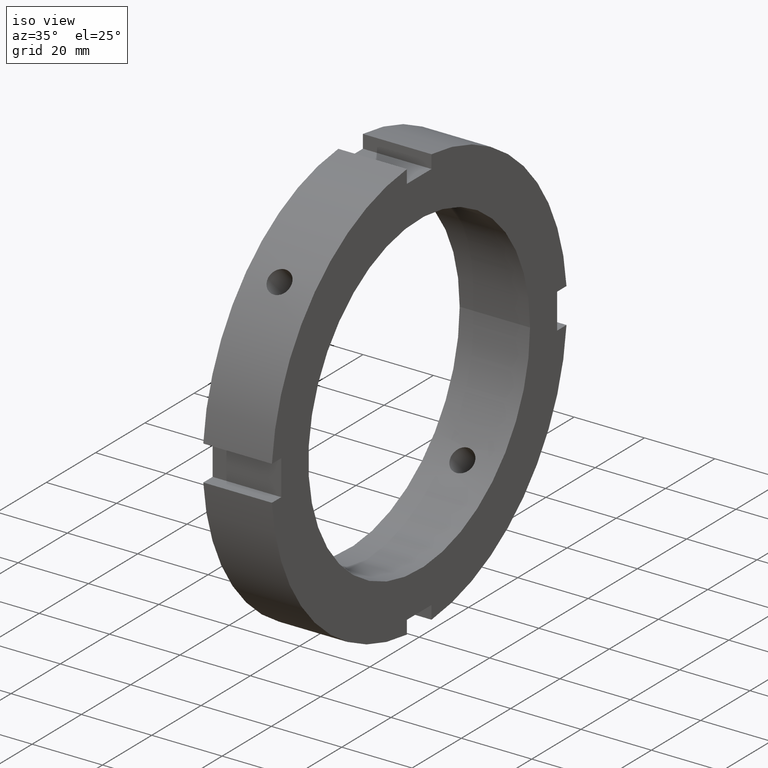
[diagram: clean part render]
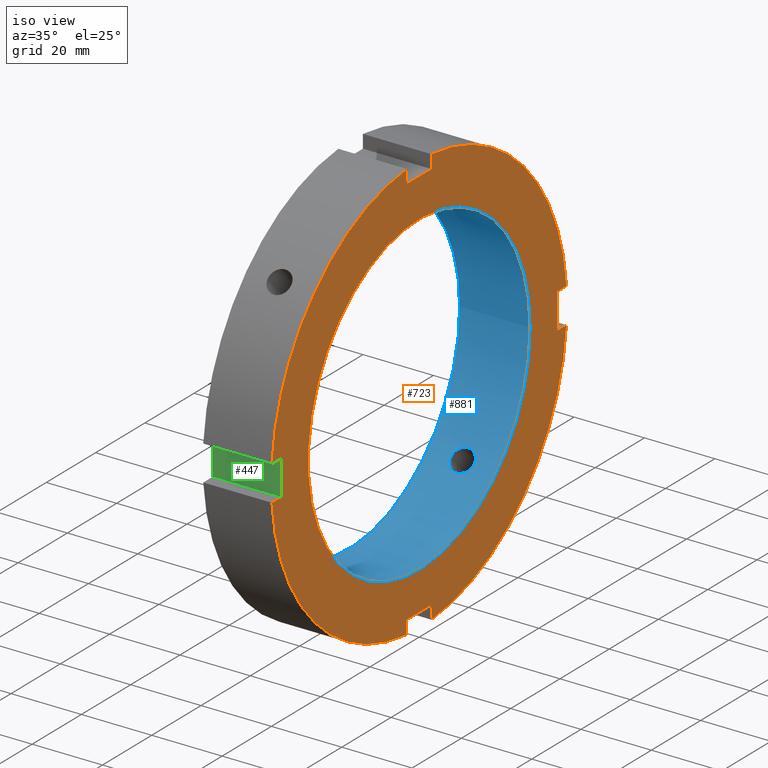
[diagram: same view with three faces highlighted in distinct colors, each labeled with its STEP entity id]
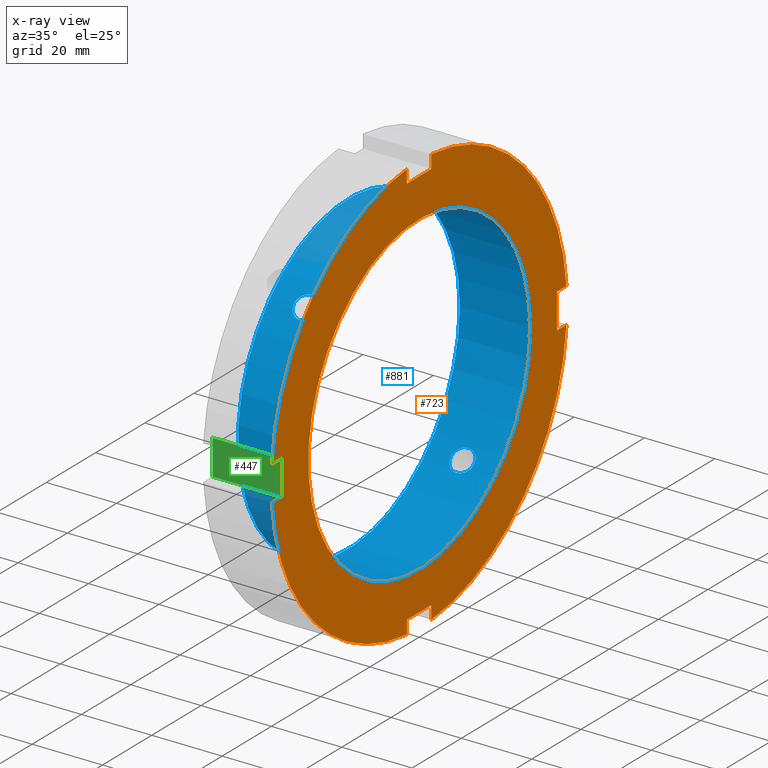
[diagram: x-ray of the same camera — body ghosted, the three highlighted faces saturated]
A machine part, iso view with three faces highlighted in distinct colors.
The next image is the same camera in x-ray (body ghosted, the three faces saturated) — at least one of them is partly hidden behind the body in this view.
Their STEP definitions:

[orange] entity #723 — the highlighted planar face has unit normal (1, 0, 0).
#259=CARTESIAN_POINT('',(19.999999999999989,-5.000000000000008,-56.0));
#260=VERTEX_POINT('',#259);
#267=CARTESIAN_POINT('',(19.999999999999989,-5.000000000000007,-59.791303715506992));
#268=VERTEX_POINT('',#267);
#269=CARTESIAN_POINT('',(19.999999999999989,-5.000000000000011,-59.791303715506992));
#270=DIRECTION('',(0.0,0.0,1.0));
#271=VECTOR('',#270,3.791303715506992);
#272=LINE('',#269,#271);
#273=EDGE_CURVE('',#268,#260,#272,.T.);
#299=CARTESIAN_POINT('',(19.999999999999989,4.999999999999985,-59.791303715506992));
#300=VERTEX_POINT('',#299);
#307=CARTESIAN_POINT('',(19.999999999999989,4.999999999999988,-56.0));
#308=VERTEX_POINT('',#307);
#309=CARTESIAN_POINT('',(19.999999999999989,4.999999999999983,-56.0));
#310=DIRECTION('',(0.0,0.0,-1.0));
#311=VECTOR('',#310,3.791303715506992);
#312=LINE('',#309,#311);
#313=EDGE_CURVE('',#308,#300,#312,.T.);
#336=CARTESIAN_POINT('',(19.999999999999989,-5.000000000000007,-55.999999999999993));
#337=DIRECTION('',(0.0,1.0,0.0));
#338=VECTOR('',#337,9.999999999999996);
#339=LINE('',#336,#338);
#340=EDGE_CURVE('',#260,#308,#339,.T.);
#361=CARTESIAN_POINT('',(19.999999999999989,-56.0,5.000000000000004));
#362=VERTEX_POINT('',#361);
#369=CARTESIAN_POINT('',(19.999999999999989,-59.791303715506992,5.000000000000004));
#370=VERTEX_POINT('',#369);
#371=CARTESIAN_POINT('',(19.999999999999989,-59.791303715506992,5.000000000000004));
#372=DIRECTION('',(0.0,1.0,0.0));
#373=VECTOR('',#372,3.791303715506992);
#374=LINE('',#371,#373);
#375=EDGE_CURVE('',#370,#362,#374,.T.);
#401=CARTESIAN_POINT('',(19.999999999999989,-59.791303715506992,-4.999999999999989));
#402=VERTEX_POINT('',#401);
#409=CARTESIAN_POINT('',(19.999999999999989,-56.0,-4.999999999999990));
#410=VERTEX_POINT('',#409);
#411=CARTESIAN_POINT('',(19.999999999999989,-56.0,-4.999999999999990));
#412=DIRECTION('',(0.0,-1.0,0.0));
#413=VECTOR('',#412,3.791303715506992);
#414=LINE('',#411,#413);
#415=EDGE_CURVE('',#410,#402,#414,.T.);
#438=CARTESIAN_POINT('',(19.999999999999989,-56.0,5.000000000000004));
#439=DIRECTION('',(0.0,0.0,-1.0));
#440=VECTOR('',#439,9.999999999999996);
#441=LINE('',#438,#440);
#442=EDGE_CURVE('',#362,#410,#441,.T.);
#463=CARTESIAN_POINT('',(19.999999999999989,5.000000000000001,56.0));
#464=VERTEX_POINT('',#463);
#471=CARTESIAN_POINT('',(19.999999999999989,5.0,59.791303715506992));
#472=VERTEX_POINT('',#471);
#473=CARTESIAN_POINT('',(19.999999999999989,4.999999999999997,59.791303715506992));
#474=DIRECTION('',(0.0,0.0,-1.0));
#475=VECTOR('',#474,3.791303715506992);
#476=LINE('',#473,#475);
#477=EDGE_CURVE('',#472,#464,#476,.T.);
#503=CARTESIAN_POINT('',(19.999999999999989,-4.999999999999992,59.791303715506992));
#504=VERTEX_POINT('',#503);
#511=CARTESIAN_POINT('',(19.999999999999989,-4.999999999999994,56.0));
#512=VERTEX_POINT('',#511);
#513=CARTESIAN_POINT('',(19.999999999999989,-4.999999999999990,56.0));
#514=DIRECTION('',(0.0,0.0,1.0));
#515=VECTOR('',#514,3.791303715506992);
#516=LINE('',#513,#515);
#517=EDGE_CURVE('',#512,#504,#516,.T.);
#540=CARTESIAN_POINT('',(19.999999999999989,5.0,56.0));
#541=DIRECTION('',(0.0,-1.0,0.0));
#542=VECTOR('',#541,9.999999999999996);
#543=LINE('',#540,#542);
#544=EDGE_CURVE('',#464,#512,#543,.T.);
#556=CARTESIAN_POINT('',(19.999999999999989,59.791303715506992,4.999999999999996));
#557=VERTEX_POINT('',#556);
#558=CARTESIAN_POINT('',(19.999999999999986,0.0,0.0));
#559=DIRECTION('',(1.0,0.0,0.0));
#560=DIRECTION('',(0.0,1.0,0.0));
#561=AXIS2_PLACEMENT_3D('',#558,#559,#560);
#562=CIRCLE('',#561,60.0);
#563=EDGE_CURVE('',#557,#472,#562,.T.);
#589=CARTESIAN_POINT('',(19.999999999999986,0.0,0.0));
#590=DIRECTION('',(1.0,0.0,0.0));
#591=DIRECTION('',(0.0,1.0,0.0));
#592=AXIS2_PLACEMENT_3D('',#589,#590,#591);
#593=CIRCLE('',#592,60.0);
#594=EDGE_CURVE('',#504,#370,#593,.T.);
#625=CARTESIAN_POINT('',(19.999999999999989,59.791303715506992,-4.999999999999996));
#626=VERTEX_POINT('',#625);
#633=CARTESIAN_POINT('',(19.999999999999986,0.0,0.0));
#634=DIRECTION('',(1.0,0.0,0.0));
#635=DIRECTION('',(0.0,1.0,0.0));
#636=AXIS2_PLACEMENT_3D('',#633,#634,#635);
#637=CIRCLE('',#636,60.0);
#638=EDGE_CURVE('',#300,#626,#637,.T.);
#652=CARTESIAN_POINT('',(19.999999999999986,0.0,0.0));
#653=DIRECTION('',(1.0,0.0,0.0));
#654=DIRECTION('',(0.0,1.0,0.0));
#655=AXIS2_PLACEMENT_3D('',#652,#653,#654);
#656=CIRCLE('',#655,60.0);
#657=EDGE_CURVE('',#402,#268,#656,.T.);
#670=CARTESIAN_POINT('',(19.999999999999989,52.500000000000000,0.0));
#671=DIRECTION('',(1.0,0.0,0.0));
#672=DIRECTION('',(0.0,0.0,-1.0));
#673=AXIS2_PLACEMENT_3D('',#670,#671,#672);
#674=PLANE('',#673);
#675=ORIENTED_EDGE('',*,*,#273,.T.);
#676=ORIENTED_EDGE('',*,*,#340,.T.);
#677=ORIENTED_EDGE('',*,*,#313,.T.);
#678=ORIENTED_EDGE('',*,*,#638,.T.);
#679=CARTESIAN_POINT('',(19.999999999999989,56.0,-4.999999999999997));
#680=VERTEX_POINT('',#679);
#681=CARTESIAN_POINT('',(19.999999999999989,59.791303715506992,-4.999999999999997));
#682=DIRECTION('',(0.0,-1.0,0.0));
#683=VECTOR('',#682,3.791303715506992);
#684=LINE('',#681,#683);
#685=EDGE_CURVE('',#626,#680,#684,.T.);
#686=ORIENTED_EDGE('',*,*,#685,.T.);
#687=CARTESIAN_POINT('',(19.999999999999989,56.0,4.999999999999997));
#688=VERTEX_POINT('',#687);
#689=CARTESIAN_POINT('',(19.999999999999989,56.0,-4.999999999999996));
#690=DIRECTION('',(0.0,0.0,1.0));
#691=VECTOR('',#690,9.999999999999993);
#692=LINE('',#689,#691);
#693=EDGE_CURVE('',#680,#688,#692,.T.);
#694=ORIENTED_EDGE('',*,*,#693,.T.);
#695=CARTESIAN_POINT('',(19.999999999999989,56.0,4.999999999999997));
#696=DIRECTION('',(0.0,1.0,0.0));
#697=VECTOR('',#696,3.791303715506992);
#698=LINE('',#695,#697);
#699=EDGE_CURVE('',#688,#557,#698,.T.);
#700=ORIENTED_EDGE('',*,*,#699,.T.);
#701=ORIENTED_EDGE('',*,*,#563,.T.);
#702=ORIENTED_EDGE('',*,*,#477,.T.);
#703=ORIENTED_EDGE('',*,*,#544,.T.);
#704=ORIENTED_EDGE('',*,*,#517,.T.);
#705=ORIENTED_EDGE('',*,*,#594,.T.);
#706=ORIENTED_EDGE('',*,*,#375,.T.);
#707=ORIENTED_EDGE('',*,*,#442,.T.);
#708=ORIENTED_EDGE('',*,*,#415,.T.);
#709=ORIENTED_EDGE('',*,*,#657,.T.);
#710=EDGE_LOOP('',(#675,#676,#677,#678,#686,#694,#700,#701,#702,#703,#704,#705,#706,#707,#708,#709));
#711=FACE_OUTER_BOUND('',#710,.T.);
#712=CARTESIAN_POINT('',(19.999999999999993,45.0,0.0));
#713=VERTEX_POINT('',#712);
#714=CARTESIAN_POINT('',(19.999999999999993,0.0,0.0));
#715=DIRECTION('',(1.0,0.0,0.0));
#716=DIRECTION('',(0.0,1.0,0.0));
#717=AXIS2_PLACEMENT_3D('',#714,#715,#716);
#718=CIRCLE('',#717,45.0);
#719=EDGE_CURVE('',#713,#713,#718,.T.);
#720=ORIENTED_EDGE('',*,*,#719,.F.);
#721=EDGE_LOOP('',(#720));
#722=FACE_BOUND('',#721,.T.);
#723=ADVANCED_FACE('',(#711,#722),#674,.T.);

[blue] entity #881 — the highlighted cylindrical surface (bore or boss wall) has radius 45 mm, axis along (1, 0, 0).
#114=CARTESIAN_POINT('',(9.999999999999991,-34.082973034355639,29.382834259808671));
#115=VERTEX_POINT('',#114);
#116=CARTESIAN_POINT('',(9.999999999999989,-34.082973034355632,29.382834259808686));
#117=CARTESIAN_POINT('',(10.417469380012360,-34.082973034355632,29.382834259808686));
#118=CARTESIAN_POINT('',(10.862661046645325,-34.028499303682750,29.446394307609175));
#119=CARTESIAN_POINT('',(11.681457677599141,-33.805037457042751,29.702665621787002));
#120=CARTESIAN_POINT('',(12.055075574637417,-33.635817881261559,29.895133630615518));
#121=CARTESIAN_POINT('',(12.645062902433306,-33.240450532774858,30.334134362726012));
#122=CARTESIAN_POINT('',(12.900814875656481,-32.987873059930429,30.609932573919274));
#123=CARTESIAN_POINT('',(13.240037625821708,-32.425269157335073,31.205282585973180));
#124=CARTESIAN_POINT('',(13.323499999999990,-32.115000285259555,31.524610021529718));
#125=CARTESIAN_POINT('',(13.323499999999990,-31.524610021529682,32.115000285259597));
#126=CARTESIAN_POINT('',(13.240037625821710,-31.205282585973141,32.425269157335109));
#127=CARTESIAN_POINT('',(12.900814875656488,-30.609932573919231,32.987873059930457));
#128=CARTESIAN_POINT('',(12.645062902433304,-30.334134362725980,33.240450532774879));
#129=CARTESIAN_POINT('',(12.055075574637421,-29.895133630615483,33.635817881261588));
#130=CARTESIAN_POINT('',(11.681457677599148,-29.702665621786963,33.805037457042793));
#131=CARTESIAN_POINT('',(10.862661046645332,-29.446394307609133,34.028499303682786));
#132=CARTESIAN_POINT('',(10.417469380012365,-29.382834259808650,34.082973034355661));
#133=CARTESIAN_POINT('',(9.582530619987617,-29.382834259808650,34.082973034355661));
#134=CARTESIAN_POINT('',(9.137338953354650,-29.446394307609136,34.028499303682786));
#135=CARTESIAN_POINT('',(8.318542322400836,-29.702665621786963,33.805037457042793));
#136=CARTESIAN_POINT('',(7.944924425362562,-29.895133630615483,33.635817881261588));
#137=CARTESIAN_POINT('',(7.354937097566678,-30.334134362725980,33.240450532774879));
#138=CARTESIAN_POINT('',(7.099185124343492,-30.609932573919231,32.987873059930457));
#139=CARTESIAN_POINT('',(6.759962374178270,-31.205282585973141,32.425269157335109));
#140=CARTESIAN_POINT('',(6.676499999999991,-31.524610021529682,32.115000285259597));
#141=CARTESIAN_POINT('',(6.676499999999991,-32.115000285259555,31.524610021529718));
#142=CARTESIAN_POINT('',(6.759962374178273,-32.425269157335073,31.205282585973180));
#143=CARTESIAN_POINT('',(7.099185124343500,-32.987873059930429,30.609932573919266));
#144=CARTESIAN_POINT('',(7.354937097566676,-33.240450532774858,30.334134362726012));
#145=CARTESIAN_POINT('',(7.944924425362563,-33.635817881261559,29.895133630615518));
#146=CARTESIAN_POINT('',(8.318542322400839,-33.805037457042751,29.702665621787002));
#147=CARTESIAN_POINT('',(9.137338953354654,-34.028499303682750,29.446394307609175));
#148=CARTESIAN_POINT('',(9.582530619987619,-34.082973034355632,29.382834259808686));
#149=CARTESIAN_POINT('',(9.999999999999993,-34.082973034355632,29.382834259808686));
#150=B_SPLINE_CURVE_WITH_KNOTS('',3,(#116,#117,#118,#119,#120,#121,#122,#123,#124,#125,#126,#127,#128,#129,#130,#131,#132,#133,#134,#135,#136,#137,#138,#139,#140,#141,#142,#143,#144,#145,#146,#147,#148,#149),.UNSPECIFIED.,.T.,.U.,(4,2,2,2,2,2,2,2,2,2,2,2,2,2,2,2,4),(0.0,0.125240814003712,0.250481628007423,0.375722315716397,0.500963003425371,0.626203691134343,0.751444378843316,0.876685192847028,1.001926006850740,1.127166820854452,1.252407634858164,1.377648322567137,1.502889010276109,1.628129697985083,1.753370385694057,1.878611199697768,2.003852013701480),.UNSPECIFIED.);
#151=EDGE_CURVE('',#115,#115,#150,.T.);
#202=CARTESIAN_POINT('',(9.999999999999991,29.382834259808664,-34.082973034355646));
#203=VERTEX_POINT('',#202);
#204=CARTESIAN_POINT('',(9.999999999999991,29.382834259808664,-34.082973034355646));
#205=CARTESIAN_POINT('',(9.582530619987617,29.382834259808664,-34.082973034355646));
#206=CARTESIAN_POINT('',(9.137338953354650,29.446394307609154,-34.028499303682771));
#207=CARTESIAN_POINT('',(8.318542322400834,29.702665621786977,-33.805037457042772));
#208=CARTESIAN_POINT('',(7.944924425362561,29.895133630615511,-33.635817881261573));
#209=CARTESIAN_POINT('',(7.354937097566678,30.334134362726004,-33.240450532774858));
#210=CARTESIAN_POINT('',(7.099185124343491,30.609932573919259,-32.987873059930443));
#211=CARTESIAN_POINT('',(6.759962374178270,31.205282585973162,-32.425269157335094));
#212=CARTESIAN_POINT('',(6.676499999999991,31.524610021529700,-32.115000285259576));
#213=CARTESIAN_POINT('',(6.676499999999991,32.115000285259576,-31.524610021529710));
#214=CARTESIAN_POINT('',(6.759962374178274,32.425269157335080,-31.205282585973173));
#215=CARTESIAN_POINT('',(7.099185124343497,32.987873059930436,-30.609932573919263));
#216=CARTESIAN_POINT('',(7.354937097566678,33.240450532774858,-30.334134362726004));
#217=CARTESIAN_POINT('',(7.944924425362561,33.635817881261559,-29.895133630615518));
#218=CARTESIAN_POINT('',(8.318542322400829,33.805037457042772,-29.702665621786991));
#219=CARTESIAN_POINT('',(9.137338953354643,34.028499303682764,-29.446394307609161));
#220=CARTESIAN_POINT('',(9.582530619987617,34.082973034355639,-29.382834259808671));
#221=CARTESIAN_POINT('',(10.417469380012365,34.082973034355639,-29.382834259808671));
#222=CARTESIAN_POINT('',(10.862661046645336,34.028499303682771,-29.446394307609157));
#223=CARTESIAN_POINT('',(11.681457677599154,33.805037457042772,-29.702665621786984));
#224=CARTESIAN_POINT('',(12.055075574637421,33.635817881261559,-29.895133630615518));
#225=CARTESIAN_POINT('',(12.645062902433303,33.240450532774858,-30.334134362726004));
#226=CARTESIAN_POINT('',(12.900814875656486,32.987873059930436,-30.609932573919263));
#227=CARTESIAN_POINT('',(13.240037625821708,32.425269157335087,-31.205282585973162));
#228=CARTESIAN_POINT('',(13.323499999999990,32.115000285259576,-31.524610021529710));
#229=CARTESIAN_POINT('',(13.323499999999990,31.524610021529700,-32.115000285259576));
#230=CARTESIAN_POINT('',(13.240037625821714,31.205282585973158,-32.425269157335094));
#231=CARTESIAN_POINT('',(12.900814875656494,30.609932573919259,-32.987873059930436));
#232=CARTESIAN_POINT('',(12.645062902433306,30.334134362726004,-33.240450532774858));
#233=CARTESIAN_POINT('',(12.055075574637424,29.895133630615511,-33.635817881261573));
#234=CARTESIAN_POINT('',(11.681457677599152,29.702665621786984,-33.805037457042772));
#235=CARTESIAN_POINT('',(10.862661046645332,29.446394307609150,-34.028499303682771));
#236=CARTESIAN_POINT('',(10.417469380012365,29.382834259808664,-34.082973034355646));
#237=CARTESIAN_POINT('',(9.999999999999991,29.382834259808664,-34.082973034355646));
#238=B_SPLINE_CURVE_WITH_KNOTS('',3,(#204,#205,#206,#207,#208,#209,#210,#211,#212,#213,#214,#215,#216,#217,#218,#219,#220,#221,#222,#223,#224,#225,#226,#227,#228,#229,#230,#231,#232,#233,#234,#235,#236,#237),.UNSPECIFIED.,.T.,.U.,(4,2,2,2,2,2,2,2,2,2,2,2,2,2,2,2,4),(0.0,0.125240814003712,0.250481628007424,0.375722315716397,0.500963003425369,0.626203691134341,0.751444378843314,0.876685192847026,1.001926006850738,1.127166820854450,1.252407634858162,1.377648322567135,1.502889010276107,1.628129697985079,1.753370385694052,1.878611199697764,2.003852013701476),.UNSPECIFIED.);
#239=EDGE_CURVE('',#203,#203,#238,.T.);
#712=CARTESIAN_POINT('',(19.999999999999993,45.0,0.0));
#713=VERTEX_POINT('',#712);
#714=CARTESIAN_POINT('',(19.999999999999993,0.0,0.0));
#715=DIRECTION('',(1.0,0.0,0.0));
#716=DIRECTION('',(0.0,1.0,0.0));
#717=AXIS2_PLACEMENT_3D('',#714,#715,#716);
#718=CIRCLE('',#717,45.0);
#719=EDGE_CURVE('',#713,#713,#718,.T.);
#805=CARTESIAN_POINT('',(-1.288320E-014,45.0,0.0));
#806=VERTEX_POINT('',#805);
#807=CARTESIAN_POINT('',(-1.288466E-014,0.0,0.0));
#808=DIRECTION('',(1.0,0.0,0.0));
#809=DIRECTION('',(0.0,1.0,0.0));
#810=AXIS2_PLACEMENT_3D('',#807,#808,#809);
#811=CIRCLE('',#810,45.0);
#812=EDGE_CURVE('',#806,#806,#811,.T.);
#864=CARTESIAN_POINT('',(9.999999999999989,0.0,0.0));
#865=DIRECTION('',(1.0,0.0,0.0));
#866=DIRECTION('',(0.0,1.0,0.0));
#867=AXIS2_PLACEMENT_3D('',#864,#865,#866);
#868=CYLINDRICAL_SURFACE('',#867,45.0);
#869=ORIENTED_EDGE('',*,*,#812,.F.);
#870=EDGE_LOOP('',(#869));
#871=FACE_OUTER_BOUND('',#870,.T.);
#872=ORIENTED_EDGE('',*,*,#151,.T.);
#873=EDGE_LOOP('',(#872));
#874=FACE_BOUND('',#873,.T.);
#875=ORIENTED_EDGE('',*,*,#239,.T.);
#876=EDGE_LOOP('',(#875));
#877=FACE_BOUND('',#876,.T.);
#878=ORIENTED_EDGE('',*,*,#719,.T.);
#879=EDGE_LOOP('',(#878));
#880=FACE_BOUND('',#879,.T.);
#881=ADVANCED_FACE('',(#871,#874,#877,#880),#868,.F.);

[green] entity #447 — the highlighted planar face has unit normal (0, 1, 0).
#351=CARTESIAN_POINT('',(0.499999999999985,-56.0,5.000000000000004));
#352=VERTEX_POINT('',#351);
#361=CARTESIAN_POINT('',(19.999999999999989,-56.0,5.000000000000004));
#362=VERTEX_POINT('',#361);
#363=CARTESIAN_POINT('',(19.999999999999989,-56.0,5.000000000000004));
#364=DIRECTION('',(-1.0,0.0,0.0));
#365=VECTOR('',#364,19.500000000000004);
#366=LINE('',#363,#365);
#367=EDGE_CURVE('',#362,#352,#366,.T.);
#393=CARTESIAN_POINT('',(0.499999999999985,-56.0,-4.999999999999990));
#394=VERTEX_POINT('',#393);
#409=CARTESIAN_POINT('',(19.999999999999989,-56.0,-4.999999999999990));
#410=VERTEX_POINT('',#409);
#417=CARTESIAN_POINT('',(19.999999999999989,-56.0,-4.999999999999990));
#418=DIRECTION('',(-1.0,0.0,0.0));
#419=VECTOR('',#418,19.500000000000004);
#420=LINE('',#417,#419);
#421=EDGE_CURVE('',#410,#394,#420,.T.);
#426=CARTESIAN_POINT('',(19.999999999999989,-56.0,-4.999999999999990));
#427=DIRECTION('',(0.0,1.0,0.0));
#428=DIRECTION('',(0.0,0.0,1.0));
#429=AXIS2_PLACEMENT_3D('',#426,#427,#428);
#430=PLANE('',#429);
#431=CARTESIAN_POINT('',(0.499999999999985,-56.0,-4.999999999999991));
#432=DIRECTION('',(0.0,0.0,1.0));
#433=VECTOR('',#432,9.999999999999996);
#434=LINE('',#431,#433);
#435=EDGE_CURVE('',#394,#352,#434,.T.);
#436=ORIENTED_EDGE('',*,*,#435,.F.);
#437=ORIENTED_EDGE('',*,*,#421,.F.);
#438=CARTESIAN_POINT('',(19.999999999999989,-56.0,5.000000000000004));
#439=DIRECTION('',(0.0,0.0,-1.0));
#440=VECTOR('',#439,9.999999999999996);
#441=LINE('',#438,#440);
#442=EDGE_CURVE('',#362,#410,#441,.T.);
#443=ORIENTED_EDGE('',*,*,#442,.F.);
#444=ORIENTED_EDGE('',*,*,#367,.T.);
#445=EDGE_LOOP('',(#436,#437,#443,#444));
#446=FACE_OUTER_BOUND('',#445,.T.);
#447=ADVANCED_FACE('',(#446),#430,.F.);